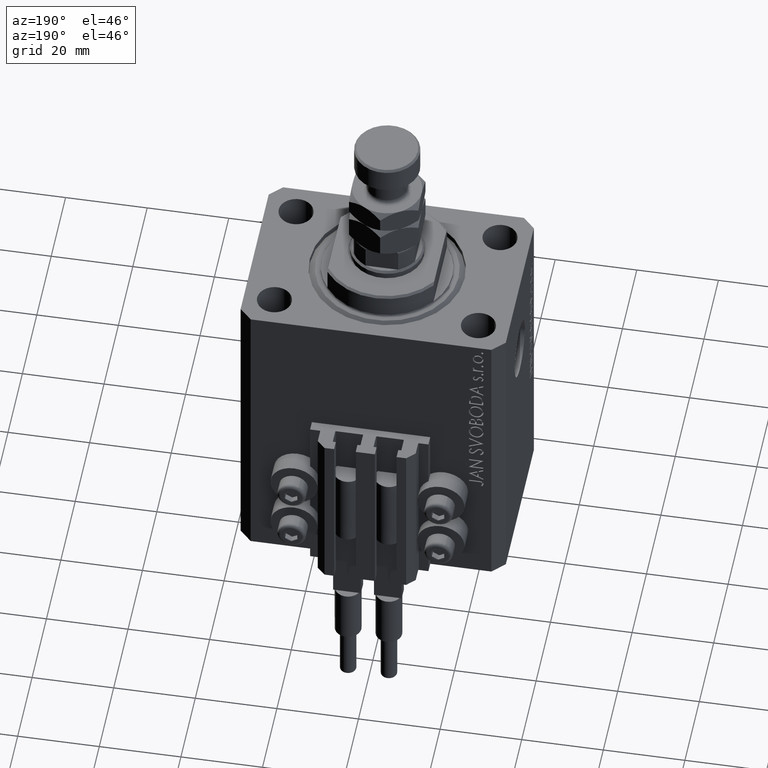
[diagram: clean part render]
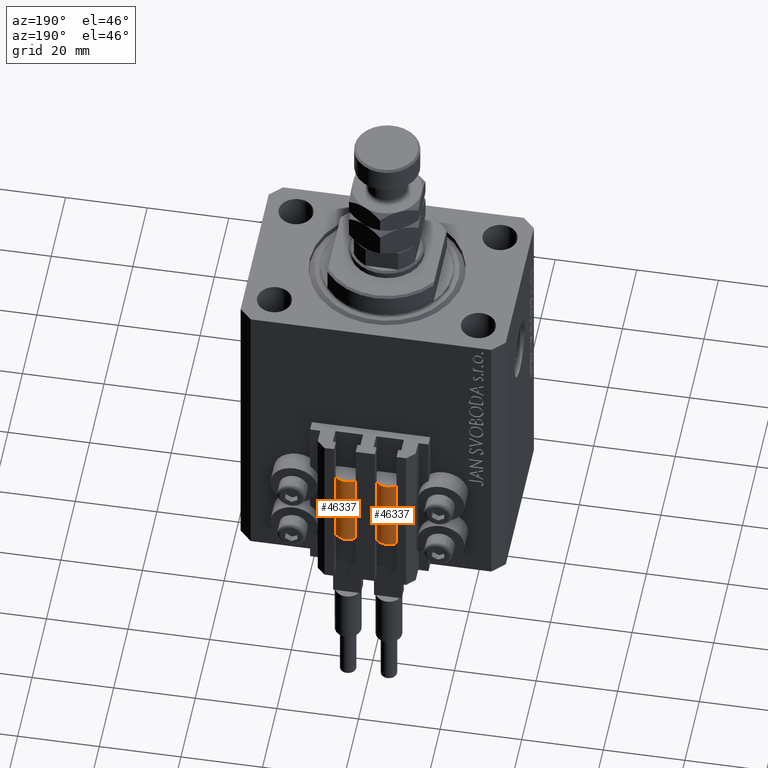
[diagram: same view with one multi-face feature highlighted, each face labeled with its STEP entity id]
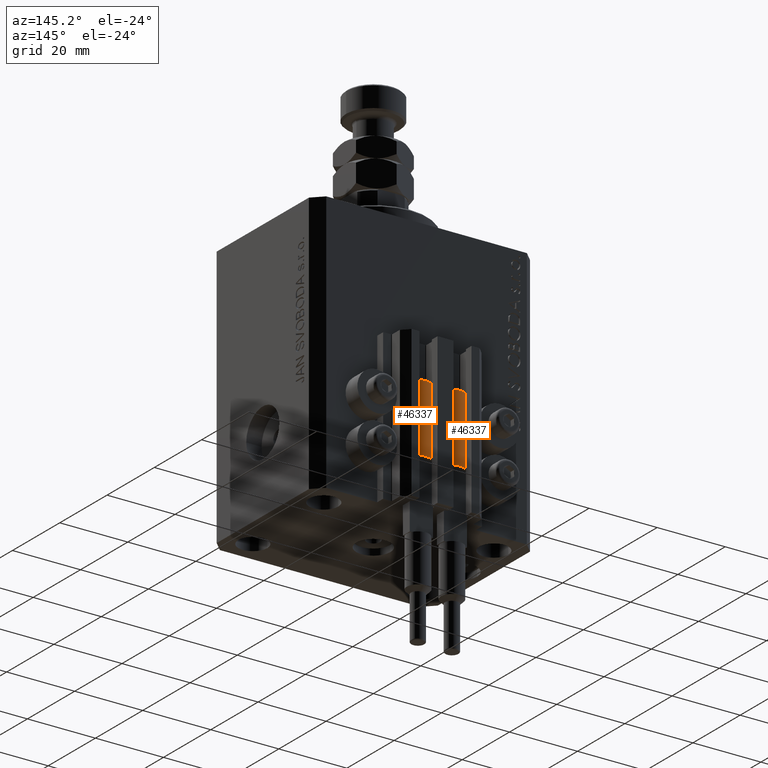
[diagram: same view with one multi-face feature highlighted, each face labeled with its STEP entity id]
A machine part, auxiliary view. The highlighted faces form ONE feature: a constant-radius fillet chain: 2 tangent blend faces with common blend radius 3.4 mm. The faces share edges in the B-rep.
A second angle (auxiliary view) of the same feature is appended — it is thin or edge-on in the first view.
Their STEP definitions:
[1] entity #46337 (Cylinder):
#389 = DIRECTION ( 'NONE',  ( -0.000000000000000000, -0.000000000000000000, -1.000000000000000000 ) ) ;
#721 = CARTESIAN_POINT ( 'NONE',  ( 3.400000000000000355, 4.163799117101001052E-16, 0.000000000000000000 ) ) ;
#2345 = DIRECTION ( 'NONE',  ( -1.000000000000000000, 0.000000000000000000, 0.000000000000000000 ) ) ;
#2530 = DIRECTION ( 'NONE',  ( 1.000000000000000000, 0.000000000000000000, 0.000000000000000000 ) ) ;
#3900 = ORIENTED_EDGE ( 'NONE', *, *, #21112, .F. ) ;
#5518 = CARTESIAN_POINT ( 'NONE',  ( 0.000000000000000000, 0.000000000000000000, 20.00000000000000000 ) ) ;
#5886 = FACE_OUTER_BOUND ( 'NONE', #21715, .T. ) ;
#6326 = CARTESIAN_POINT ( 'NONE',  ( 0.000000000000000000, 0.000000000000000000, 20.00000000000000000 ) ) ;
#6861 = CIRCLE ( 'NONE', #10892, 3.400000000000000355 ) ;
#9404 = CARTESIAN_POINT ( 'NONE',  ( 0.000000000000000000, 0.000000000000000000, 20.00000000000000000 ) ) ;
#10892 = AXIS2_PLACEMENT_3D ( 'NONE', #6326, #40654, #2530 ) ;
#11647 = CARTESIAN_POINT ( 'NONE',  ( 0.000000000000000000, 0.000000000000000000, 0.000000000000000000 ) ) ;
#11750 = EDGE_CURVE ( 'NONE', #38811, #28958, #11764, .T. ) ;
#11764 = LINE ( 'NONE', #34971, #35885 ) ;
#12399 = AXIS2_PLACEMENT_3D ( 'NONE', #11647, #27276, #43438 ) ;
#12496 = CARTESIAN_POINT ( 'NONE',  ( 3.051229260478471428, -1.500000000000000000, 20.00000000000000000 ) ) ;
#12767 = VERTEX_POINT ( 'NONE', #28643 ) ;
#13512 = ORIENTED_EDGE ( 'NONE', *, *, #11750, .T. ) ;
#13931 = DIRECTION ( 'NONE',  ( 0.000000000000000000, 0.000000000000000000, 1.000000000000000000 ) ) ;
#14492 = EDGE_CURVE ( 'NONE', #28958, #37449, #20474, .T. ) ;
#16474 = CARTESIAN_POINT ( 'NONE',  ( -3.399999999999999467, -4.915049848600952119E-16, 20.00000000000000000 ) ) ;
#20133 = LINE ( 'NONE', #31736, #38442 ) ;
#20474 = CIRCLE ( 'NONE', #12399, 3.400000000000000355 ) ;
#20913 = DIRECTION ( 'NONE',  ( 0.000000000000000000, 0.000000000000000000, 1.000000000000000000 ) ) ;
#21112 = EDGE_CURVE ( 'NONE', #12767, #37449, #20133, .T. ) ;
#21715 = EDGE_LOOP ( 'NONE', ( #3900, #47473, #38770, #49272, #13512, #36227 ) ) ;
#24818 = DIRECTION ( 'NONE',  ( -0.000000000000000000, -0.000000000000000000, -1.000000000000000000 ) ) ;
#25558 = CARTESIAN_POINT ( 'NONE',  ( 0.000000000000000000, 0.000000000000000000, 20.00000000000000000 ) ) ;
#25677 = DIRECTION ( 'NONE',  ( 1.000000000000000000, 0.000000000000000000, 0.000000000000000000 ) ) ;
#27276 = DIRECTION ( 'NONE',  ( 0.000000000000000000, 0.000000000000000000, 1.000000000000000000 ) ) ;
#28339 = VERTEX_POINT ( 'NONE', #33454 ) ;
#28569 = DIRECTION ( 'NONE',  ( 1.000000000000000000, 0.000000000000000000, 0.000000000000000000 ) ) ;
#28643 = CARTESIAN_POINT ( 'NONE',  ( 3.400000000000000355, 0.000000000000000000, 20.00000000000000000 ) ) ;
#28958 = VERTEX_POINT ( 'NONE', #32772 ) ;
#28991 = CIRCLE ( 'NONE', #35459, 3.400000000000000355 ) ;
#29517 = VERTEX_POINT ( 'NONE', #12496 ) ;
#31736 = CARTESIAN_POINT ( 'NONE',  ( 3.400000000000000355, 4.163799117101001052E-16, 20.00000000000000000 ) ) ;
#32139 = EDGE_CURVE ( 'NONE', #28339, #29517, #38168, .T. ) ;
#32149 = CYLINDRICAL_SURFACE ( 'NONE', #38162, 3.400000000000000355 ) ;
#32772 = CARTESIAN_POINT ( 'NONE',  ( -3.400000000000000355, 0.000000000000000000, 0.000000000000000000 ) ) ;
#33454 = CARTESIAN_POINT ( 'NONE',  ( -3.051229260478471428, -1.500000000000000000, 20.00000000000000000 ) ) ;
#34161 = AXIS2_PLACEMENT_3D ( 'NONE', #9404, #13931, #28569 ) ;
#34971 = CARTESIAN_POINT ( 'NONE',  ( -3.400000000000000355, 0.000000000000000000, 20.00000000000000000 ) ) ;
#35459 = AXIS2_PLACEMENT_3D ( 'NONE', #5518, #20913, #25677 ) ;
#35885 = VECTOR ( 'NONE', #389, 1000.000000000000000 ) ;
#36227 = ORIENTED_EDGE ( 'NONE', *, *, #14492, .T. ) ;
#37449 = VERTEX_POINT ( 'NONE', #721 ) ;
#38162 = AXIS2_PLACEMENT_3D ( 'NONE', #25558, #24818, #2345 ) ;
#38168 = CIRCLE ( 'NONE', #34161, 3.400000000000000355 ) ;
#38252 = EDGE_CURVE ( 'NONE', #38811, #28339, #28991, .T. ) ;
#38442 = VECTOR ( 'NONE', #46653, 1000.000000000000000 ) ;
#38770 = ORIENTED_EDGE ( 'NONE', *, *, #32139, .F. ) ;
#38811 = VERTEX_POINT ( 'NONE', #16474 ) ;
#40654 = DIRECTION ( 'NONE',  ( 0.000000000000000000, 0.000000000000000000, 1.000000000000000000 ) ) ;
#43438 = DIRECTION ( 'NONE',  ( 1.000000000000000000, 0.000000000000000000, 0.000000000000000000 ) ) ;
#46337 = ADVANCED_FACE ( 'NONE', ( #5886 ), #32149, .T. ) ;
#46653 = DIRECTION ( 'NONE',  ( -0.000000000000000000, -0.000000000000000000, -1.000000000000000000 ) ) ;
#47473 = ORIENTED_EDGE ( 'NONE', *, *, #49609, .F. ) ;
#49272 = ORIENTED_EDGE ( 'NONE', *, *, #38252, .F. ) ;
#49609 = EDGE_CURVE ( 'NONE', #29517, #12767, #6861, .T. ) ;
[2] entity #46337 (Cylinder):
#389 = DIRECTION ( 'NONE',  ( -0.000000000000000000, -0.000000000000000000, -1.000000000000000000 ) ) ;
#721 = CARTESIAN_POINT ( 'NONE',  ( 3.400000000000000355, 4.163799117101001052E-16, 0.000000000000000000 ) ) ;
#2345 = DIRECTION ( 'NONE',  ( -1.000000000000000000, 0.000000000000000000, 0.000000000000000000 ) ) ;
#2530 = DIRECTION ( 'NONE',  ( 1.000000000000000000, 0.000000000000000000, 0.000000000000000000 ) ) ;
#3900 = ORIENTED_EDGE ( 'NONE', *, *, #21112, .F. ) ;
#5518 = CARTESIAN_POINT ( 'NONE',  ( 0.000000000000000000, 0.000000000000000000, 20.00000000000000000 ) ) ;
#5886 = FACE_OUTER_BOUND ( 'NONE', #21715, .T. ) ;
#6326 = CARTESIAN_POINT ( 'NONE',  ( 0.000000000000000000, 0.000000000000000000, 20.00000000000000000 ) ) ;
#6861 = CIRCLE ( 'NONE', #10892, 3.400000000000000355 ) ;
#9404 = CARTESIAN_POINT ( 'NONE',  ( 0.000000000000000000, 0.000000000000000000, 20.00000000000000000 ) ) ;
#10892 = AXIS2_PLACEMENT_3D ( 'NONE', #6326, #40654, #2530 ) ;
#11647 = CARTESIAN_POINT ( 'NONE',  ( 0.000000000000000000, 0.000000000000000000, 0.000000000000000000 ) ) ;
#11750 = EDGE_CURVE ( 'NONE', #38811, #28958, #11764, .T. ) ;
#11764 = LINE ( 'NONE', #34971, #35885 ) ;
#12399 = AXIS2_PLACEMENT_3D ( 'NONE', #11647, #27276, #43438 ) ;
#12496 = CARTESIAN_POINT ( 'NONE',  ( 3.051229260478471428, -1.500000000000000000, 20.00000000000000000 ) ) ;
#12767 = VERTEX_POINT ( 'NONE', #28643 ) ;
#13512 = ORIENTED_EDGE ( 'NONE', *, *, #11750, .T. ) ;
#13931 = DIRECTION ( 'NONE',  ( 0.000000000000000000, 0.000000000000000000, 1.000000000000000000 ) ) ;
#14492 = EDGE_CURVE ( 'NONE', #28958, #37449, #20474, .T. ) ;
#16474 = CARTESIAN_POINT ( 'NONE',  ( -3.399999999999999467, -4.915049848600952119E-16, 20.00000000000000000 ) ) ;
#20133 = LINE ( 'NONE', #31736, #38442 ) ;
#20474 = CIRCLE ( 'NONE', #12399, 3.400000000000000355 ) ;
#20913 = DIRECTION ( 'NONE',  ( 0.000000000000000000, 0.000000000000000000, 1.000000000000000000 ) ) ;
#21112 = EDGE_CURVE ( 'NONE', #12767, #37449, #20133, .T. ) ;
#21715 = EDGE_LOOP ( 'NONE', ( #3900, #47473, #38770, #49272, #13512, #36227 ) ) ;
#24818 = DIRECTION ( 'NONE',  ( -0.000000000000000000, -0.000000000000000000, -1.000000000000000000 ) ) ;
#25558 = CARTESIAN_POINT ( 'NONE',  ( 0.000000000000000000, 0.000000000000000000, 20.00000000000000000 ) ) ;
#25677 = DIRECTION ( 'NONE',  ( 1.000000000000000000, 0.000000000000000000, 0.000000000000000000 ) ) ;
#27276 = DIRECTION ( 'NONE',  ( 0.000000000000000000, 0.000000000000000000, 1.000000000000000000 ) ) ;
#28339 = VERTEX_POINT ( 'NONE', #33454 ) ;
#28569 = DIRECTION ( 'NONE',  ( 1.000000000000000000, 0.000000000000000000, 0.000000000000000000 ) ) ;
#28643 = CARTESIAN_POINT ( 'NONE',  ( 3.400000000000000355, 0.000000000000000000, 20.00000000000000000 ) ) ;
#28958 = VERTEX_POINT ( 'NONE', #32772 ) ;
#28991 = CIRCLE ( 'NONE', #35459, 3.400000000000000355 ) ;
#29517 = VERTEX_POINT ( 'NONE', #12496 ) ;
#31736 = CARTESIAN_POINT ( 'NONE',  ( 3.400000000000000355, 4.163799117101001052E-16, 20.00000000000000000 ) ) ;
#32139 = EDGE_CURVE ( 'NONE', #28339, #29517, #38168, .T. ) ;
#32149 = CYLINDRICAL_SURFACE ( 'NONE', #38162, 3.400000000000000355 ) ;
#32772 = CARTESIAN_POINT ( 'NONE',  ( -3.400000000000000355, 0.000000000000000000, 0.000000000000000000 ) ) ;
#33454 = CARTESIAN_POINT ( 'NONE',  ( -3.051229260478471428, -1.500000000000000000, 20.00000000000000000 ) ) ;
#34161 = AXIS2_PLACEMENT_3D ( 'NONE', #9404, #13931, #28569 ) ;
#34971 = CARTESIAN_POINT ( 'NONE',  ( -3.400000000000000355, 0.000000000000000000, 20.00000000000000000 ) ) ;
#35459 = AXIS2_PLACEMENT_3D ( 'NONE', #5518, #20913, #25677 ) ;
#35885 = VECTOR ( 'NONE', #389, 1000.000000000000000 ) ;
#36227 = ORIENTED_EDGE ( 'NONE', *, *, #14492, .T. ) ;
#37449 = VERTEX_POINT ( 'NONE', #721 ) ;
#38162 = AXIS2_PLACEMENT_3D ( 'NONE', #25558, #24818, #2345 ) ;
#38168 = CIRCLE ( 'NONE', #34161, 3.400000000000000355 ) ;
#38252 = EDGE_CURVE ( 'NONE', #38811, #28339, #28991, .T. ) ;
#38442 = VECTOR ( 'NONE', #46653, 1000.000000000000000 ) ;
#38770 = ORIENTED_EDGE ( 'NONE', *, *, #32139, .F. ) ;
#38811 = VERTEX_POINT ( 'NONE', #16474 ) ;
#40654 = DIRECTION ( 'NONE',  ( 0.000000000000000000, 0.000000000000000000, 1.000000000000000000 ) ) ;
#43438 = DIRECTION ( 'NONE',  ( 1.000000000000000000, 0.000000000000000000, 0.000000000000000000 ) ) ;
#46337 = ADVANCED_FACE ( 'NONE', ( #5886 ), #32149, .T. ) ;
#46653 = DIRECTION ( 'NONE',  ( -0.000000000000000000, -0.000000000000000000, -1.000000000000000000 ) ) ;
#47473 = ORIENTED_EDGE ( 'NONE', *, *, #49609, .F. ) ;
#49272 = ORIENTED_EDGE ( 'NONE', *, *, #38252, .F. ) ;
#49609 = EDGE_CURVE ( 'NONE', #29517, #12767, #6861, .T. ) ;